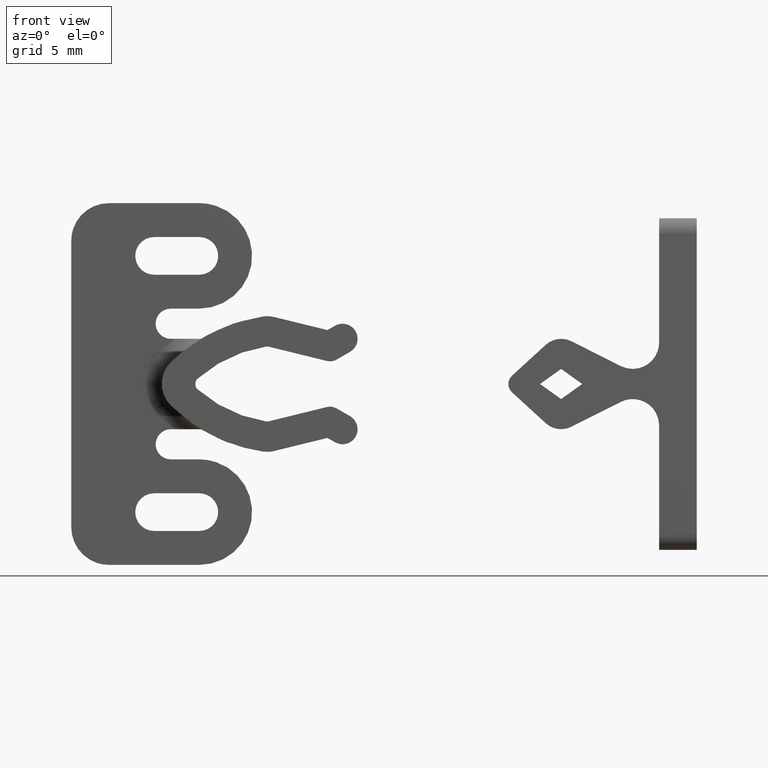
[diagram: clean part render]
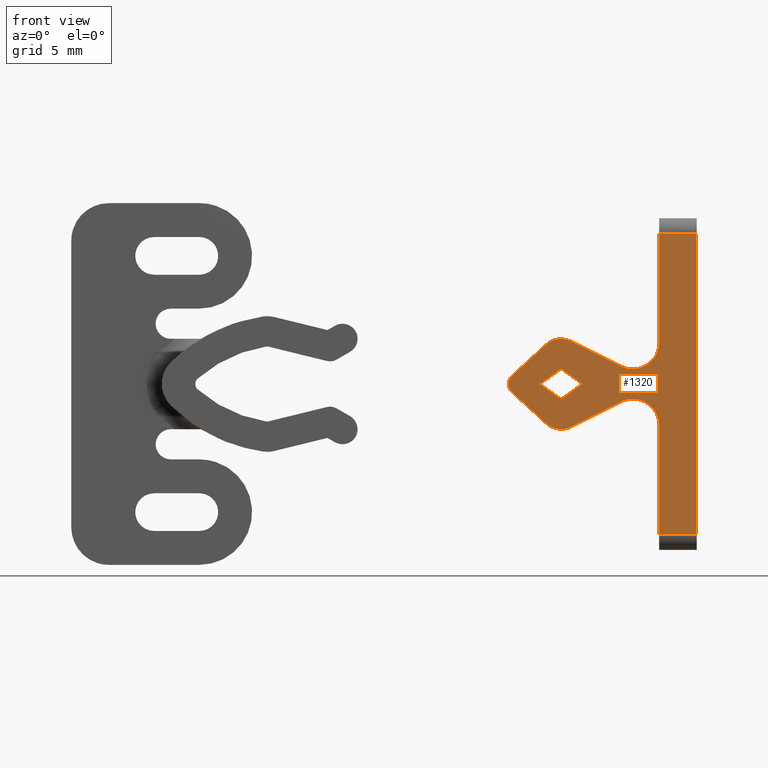
[diagram: same view with one face highlighted and labeled with its STEP entity id]
A machine part, front view. The second image highlights one B-rep face of the part: STEP entity #1320.
In plain terms, the highlighted face is a freeform B-spline surface patch.
Its self-contained STEP definition (entity closure, byte-faithful):
#413=CARTESIAN_POINT('',(12.499997000044980,-3.750000000000000,-1.000012857165880));
#414=VERTEX_POINT('',#413);
#415=CARTESIAN_POINT('',(11.099995499988660,-3.750000000000000,-0.000007499959802));
#416=VERTEX_POINT('',#415);
#417=CARTESIAN_POINT('',(12.499997000044980,-3.750000000000000,-1.000012857165880));
#418=CARTESIAN_POINT('',(11.099995499988660,-3.750000000000000,-0.000007499959802));
#419=QUASI_UNIFORM_CURVE('',1,(#417,#418),.UNSPECIFIED.,.F.,.U.);
#420=EDGE_CURVE('',#414,#416,#419,.T.);
#449=CARTESIAN_POINT('',(13.899998500044919,-3.750000000000000,-0.000007499999981));
#450=VERTEX_POINT('',#449);
#451=CARTESIAN_POINT('',(13.899998500044919,-3.750000000000000,-0.000007499999981));
#452=CARTESIAN_POINT('',(12.499997000044980,-3.750000000000000,-1.000012857165880));
#453=QUASI_UNIFORM_CURVE('',1,(#451,#452),.UNSPECIFIED.,.F.,.U.);
#454=EDGE_CURVE('',#450,#414,#453,.T.);
#477=CARTESIAN_POINT('',(12.500004499988719,-3.750000000000000,0.999992500040112));
#478=VERTEX_POINT('',#477);
#479=CARTESIAN_POINT('',(12.500004499988719,-3.750000000000000,0.999992500040112));
#480=CARTESIAN_POINT('',(13.899998500044919,-3.750000000000000,-0.000007499999981));
#481=QUASI_UNIFORM_CURVE('',1,(#479,#480),.UNSPECIFIED.,.F.,.U.);
#482=EDGE_CURVE('',#478,#450,#481,.T.);
#505=CARTESIAN_POINT('',(11.099995499988660,-3.750000000000000,-0.000007499959802));
#506=CARTESIAN_POINT('',(12.500004499988719,-3.750000000000000,0.999992500040112));
#507=QUASI_UNIFORM_CURVE('',1,(#505,#506),.UNSPECIFIED.,.F.,.U.);
#508=EDGE_CURVE('',#416,#478,#507,.T.);
#536=CARTESIAN_POINT('',(21.500000000000000,-3.750000000000000,10.0));
#537=VERTEX_POINT('',#536);
#558=CARTESIAN_POINT('',(19.0,-3.750000000000000,10.0));
#559=VERTEX_POINT('',#558);
#573=CARTESIAN_POINT('',(21.500000000000000,-3.750000000000000,10.0));
#574=CARTESIAN_POINT('',(19.0,-3.750000000000000,10.0));
#575=QUASI_UNIFORM_CURVE('',1,(#573,#574),.UNSPECIFIED.,.F.,.U.);
#576=EDGE_CURVE('',#537,#559,#575,.T.);
#658=CARTESIAN_POINT('',(19.0,-3.750000000000000,-10.0));
#659=VERTEX_POINT('',#658);
#680=CARTESIAN_POINT('',(21.500000000000000,-3.750000000000000,-10.0));
#681=VERTEX_POINT('',#680);
#695=CARTESIAN_POINT('',(19.0,-3.750000000000000,-10.0));
#696=CARTESIAN_POINT('',(21.500000000000000,-3.750000000000000,-10.0));
#697=QUASI_UNIFORM_CURVE('',1,(#695,#696),.UNSPECIFIED.,.F.,.U.);
#698=EDGE_CURVE('',#659,#681,#697,.T.);
#818=CARTESIAN_POINT('',(19.0,-3.750000000000000,-2.750000000000055));
#819=VERTEX_POINT('',#818);
#820=CARTESIAN_POINT('',(16.458479313073848,-3.750000000000000,-1.189232559870708));
#821=VERTEX_POINT('',#820);
#822=CARTESIAN_POINT('',(19.0,-3.750000000000000,-2.750000000000055));
#823=CARTESIAN_POINT('',(19.0,-3.750000000000000,-1.771044081258221));
#824=CARTESIAN_POINT('',(18.165788948906691,-3.750000000000000,-1.258748645915041));
#825=CARTESIAN_POINT('',(17.331577897813371,-3.750000000000000,-0.746453210571862));
#826=CARTESIAN_POINT('',(16.458479313073848,-3.750000000000000,-1.189232559870698));
#834=(BOUNDED_CURVE()B_SPLINE_CURVE(2,(#822,#823,#824,#825,#826),.UNSPECIFIED.,.F.,.U.)B_SPLINE_CURVE_WITH_KNOTS((3,2,3),(0.0,0.500000000000000,1.0),.UNSPECIFIED.)CURVE()GEOMETRIC_REPRESENTATION_ITEM()RATIONAL_B_SPLINE_CURVE((1.0,0.872727898833256,1.0,0.872727898833256,1.0))REPRESENTATION_ITEM(''));
#835=EDGE_CURVE('',#819,#821,#834,.T.);
#874=CARTESIAN_POINT('',(13.173622058135900,-3.750000000000000,-2.840236293641070));
#875=VERTEX_POINT('',#874);
#876=CARTESIAN_POINT('',(13.173622058135900,-3.750000000000000,-2.840236293641070));
#877=CARTESIAN_POINT('',(16.458479313073848,-3.750000000000000,-1.189232559870708));
#878=QUASI_UNIFORM_CURVE('',1,(#876,#877),.UNSPECIFIED.,.F.,.U.);
#879=EDGE_CURVE('',#875,#821,#878,.T.);
#911=CARTESIAN_POINT('',(11.490360324490601,-3.750000000000000,-2.609336615116110));
#912=VERTEX_POINT('',#911);
#913=CARTESIAN_POINT('',(11.490360324490601,-3.750000000000000,-2.609336615116111));
#914=CARTESIAN_POINT('',(12.252658056997753,-3.750000000000000,-3.303126060810662));
#915=CARTESIAN_POINT('',(13.173622058135900,-3.750000000000000,-2.840236293641071));
#923=(BOUNDED_CURVE()B_SPLINE_CURVE(2,(#913,#914,#915),.UNSPECIFIED.,.F.,.U.)CURVE()GEOMETRIC_REPRESENTATION_ITEM()QUASI_UNIFORM_CURVE()RATIONAL_B_SPLINE_CURVE((1.0,0.824170645389957,1.0))REPRESENTATION_ITEM(''));
#924=EDGE_CURVE('',#912,#875,#923,.T.);
#955=CARTESIAN_POINT('',(9.243663230965858,-3.750000000000000,-0.553283902100966));
#956=VERTEX_POINT('',#955);
#957=CARTESIAN_POINT('',(9.243663230965858,-3.750000000000000,-0.553283902100966));
#958=CARTESIAN_POINT('',(11.490360324490601,-3.750000000000000,-2.609336615116110));
#959=QUASI_UNIFORM_CURVE('',1,(#957,#958),.UNSPECIFIED.,.F.,.U.);
#960=EDGE_CURVE('',#956,#912,#959,.T.);
#992=CARTESIAN_POINT('',(9.240180318086511,-3.750000000000000,0.550076260107290));
#993=VERTEX_POINT('',#992);
#994=CARTESIAN_POINT('',(9.240180318086509,-3.750000000000000,0.550076260107293));
#995=CARTESIAN_POINT('',(8.998965574065009,-3.750000000000000,0.326514486970787));
#996=CARTESIAN_POINT('',(9.000003736617522,-3.750000000000000,-0.002367469603011));
#997=CARTESIAN_POINT('',(9.001041899170033,-3.750000000000000,-0.331249426176809));
#998=CARTESIAN_POINT('',(9.243663230965860,-3.750000000000000,-0.553283902100964));
#1006=(BOUNDED_CURVE()B_SPLINE_CURVE(2,(#994,#995,#996,#997,#998),.UNSPECIFIED.,.F.,.U.)B_SPLINE_CURVE_WITH_KNOTS((3,2,3),(0.0,0.500000000000000,1.0),.UNSPECIFIED.)CURVE()GEOMETRIC_REPRESENTATION_ITEM()RATIONAL_B_SPLINE_CURVE((1.0,0.915816850981229,1.0,0.915816850981229,1.0))REPRESENTATION_ITEM(''));
#1007=EDGE_CURVE('',#993,#956,#1006,.T.);
#1040=CARTESIAN_POINT('',(11.482005783362940,-3.750000000000000,2.601674986052320));
#1041=VERTEX_POINT('',#1040);
#1042=CARTESIAN_POINT('',(11.482005783362940,-3.750000000000000,2.601674986052320));
#1043=CARTESIAN_POINT('',(9.240180318086511,-3.750000000000000,0.550076260107290));
#1044=QUASI_UNIFORM_CURVE('',1,(#1042,#1043),.UNSPECIFIED.,.F.,.U.);
#1045=EDGE_CURVE('',#1041,#993,#1044,.T.);
#1077=CARTESIAN_POINT('',(13.169669787855540,-3.750000000000000,2.842215472729085));
#1078=VERTEX_POINT('',#1077);
#1079=CARTESIAN_POINT('',(13.169669787855540,-3.750000000000000,2.842215472729086));
#1080=CARTESIAN_POINT('',(12.242783424574185,-3.750000000000000,3.304665658169669));
#1081=CARTESIAN_POINT('',(11.482005783362940,-3.750000000000000,2.601674986052318));
#1089=(BOUNDED_CURVE()B_SPLINE_CURVE(2,(#1079,#1080,#1081),.UNSPECIFIED.,.F.,.U.)CURVE()GEOMETRIC_REPRESENTATION_ITEM()QUASI_UNIFORM_CURVE()RATIONAL_B_SPLINE_CURVE((1.0,0.822862921094484,1.0))REPRESENTATION_ITEM(''));
#1090=EDGE_CURVE('',#1078,#1041,#1089,.T.);
#1121=CARTESIAN_POINT('',(16.464110999999800,-3.750000000000000,1.186371000000000));
#1122=VERTEX_POINT('',#1121);
#1123=CARTESIAN_POINT('',(16.464110999999800,-3.750000000000000,1.186371000000000));
#1124=CARTESIAN_POINT('',(13.169669787855540,-3.750000000000000,2.842215472729085));
#1125=QUASI_UNIFORM_CURVE('',1,(#1123,#1124),.UNSPECIFIED.,.F.,.U.);
#1126=EDGE_CURVE('',#1122,#1078,#1125,.T.);
#1158=CARTESIAN_POINT('',(19.0,-3.750000000000000,2.750000000000000));
#1159=VERTEX_POINT('',#1158);
#1160=CARTESIAN_POINT('',(16.464110999999811,-3.750000000000000,1.186371000000015));
#1161=CARTESIAN_POINT('',(17.336956459995420,-3.750000000000000,0.747663420349584));
#1162=CARTESIAN_POINT('',(18.168485683440029,-3.750000000000000,1.260384287913324));
#1163=CARTESIAN_POINT('',(19.000014906884637,-3.750000000000000,1.773105155477065));
#1164=CARTESIAN_POINT('',(19.000000000000011,-3.750000000000000,2.750000000000000));
#1172=(BOUNDED_CURVE()B_SPLINE_CURVE(2,(#1160,#1161,#1162,#1163,#1164),.UNSPECIFIED.,.F.,.U.)B_SPLINE_CURVE_WITH_KNOTS((3,2,3),(0.0,0.500000000000000,1.0),.UNSPECIFIED.)CURVE()GEOMETRIC_REPRESENTATION_ITEM()RATIONAL_B_SPLINE_CURVE((1.0,0.873165094050525,1.0,0.873165094050525,1.0))REPRESENTATION_ITEM(''));
#1173=EDGE_CURVE('',#1122,#1159,#1172,.T.);
#1214=CARTESIAN_POINT('',(19.0,-3.750000000000000,-2.750000000000055));
#1215=CARTESIAN_POINT('',(19.0,-3.750000000000000,-10.0));
#1216=QUASI_UNIFORM_CURVE('',1,(#1214,#1215),.UNSPECIFIED.,.F.,.U.);
#1217=EDGE_CURVE('',#819,#659,#1216,.T.);
#1242=CARTESIAN_POINT('',(19.0,-3.750000000000000,10.0));
#1243=CARTESIAN_POINT('',(19.0,-3.750000000000000,2.750000000000000));
#1244=QUASI_UNIFORM_CURVE('',1,(#1242,#1243),.UNSPECIFIED.,.F.,.U.);
#1245=EDGE_CURVE('',#559,#1159,#1244,.T.);
#1272=CARTESIAN_POINT('',(21.500000000000000,-3.750000000000000,-10.0));
#1273=CARTESIAN_POINT('',(21.500000000000000,-3.750000000000000,10.0));
#1274=QUASI_UNIFORM_CURVE('',1,(#1272,#1273),.UNSPECIFIED.,.F.,.U.);
#1275=EDGE_CURVE('',#681,#537,#1274,.T.);
#1293=CARTESIAN_POINT('',(8.375628947488984,-3.750000000000000,10.998999961236120));
#1294=CARTESIAN_POINT('',(22.124375124404558,-3.750000000000000,10.998999961236120));
#1295=CARTESIAN_POINT('',(8.375628947488984,-3.750000000000000,-10.999000497677921));
#1296=CARTESIAN_POINT('',(22.124375124404558,-3.750000000000000,-10.999000497677921));
#1297=B_SPLINE_SURFACE_WITH_KNOTS('',1,1,((#1293,#1295),(#1294,#1296)),.UNSPECIFIED.,.F.,.F.,.U.,(2,2),(2,2),(0.0,13.748746176915580),(0.0,21.998000458914039),.UNSPECIFIED.);
#1298=ORIENTED_EDGE('',*,*,#1217,.T.);
#1299=ORIENTED_EDGE('',*,*,#698,.T.);
#1300=ORIENTED_EDGE('',*,*,#1275,.T.);
#1301=ORIENTED_EDGE('',*,*,#576,.T.);
#1302=ORIENTED_EDGE('',*,*,#1245,.T.);
#1303=ORIENTED_EDGE('',*,*,#1173,.F.);
#1304=ORIENTED_EDGE('',*,*,#1126,.T.);
#1305=ORIENTED_EDGE('',*,*,#1090,.T.);
#1306=ORIENTED_EDGE('',*,*,#1045,.T.);
#1307=ORIENTED_EDGE('',*,*,#1007,.T.);
#1308=ORIENTED_EDGE('',*,*,#960,.T.);
#1309=ORIENTED_EDGE('',*,*,#924,.T.);
#1310=ORIENTED_EDGE('',*,*,#879,.T.);
#1311=ORIENTED_EDGE('',*,*,#835,.F.);
#1312=EDGE_LOOP('',(#1298,#1299,#1300,#1301,#1302,#1303,#1304,#1305,#1306,#1307,#1308,#1309,#1310,#1311));
#1313=FACE_OUTER_BOUND('',#1312,.T.);
#1314=ORIENTED_EDGE('',*,*,#420,.T.);
#1315=ORIENTED_EDGE('',*,*,#508,.T.);
#1316=ORIENTED_EDGE('',*,*,#482,.T.);
#1317=ORIENTED_EDGE('',*,*,#454,.T.);
#1318=EDGE_LOOP('',(#1314,#1315,#1316,#1317));
#1319=FACE_BOUND('',#1318,.T.);
#1320=ADVANCED_FACE('',(#1313,#1319),#1297,.F.);